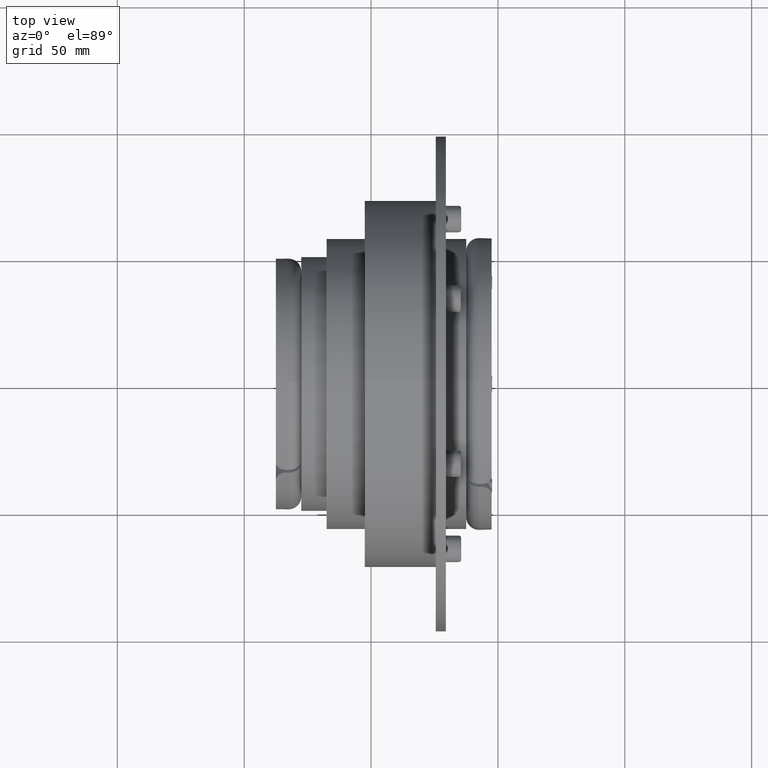
[diagram: clean part render]
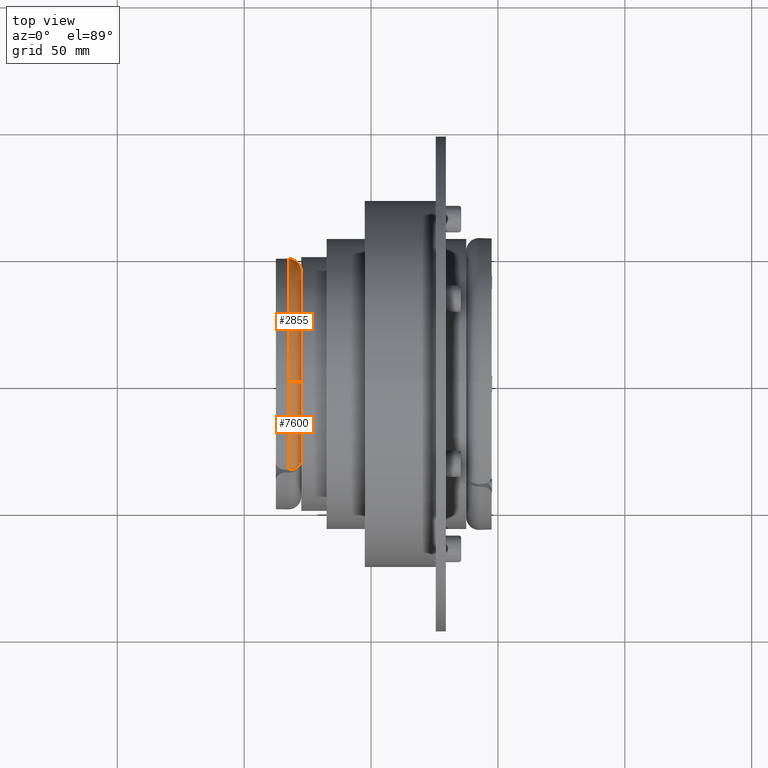
[diagram: same view with one multi-face feature highlighted, each face labeled with its STEP entity id]
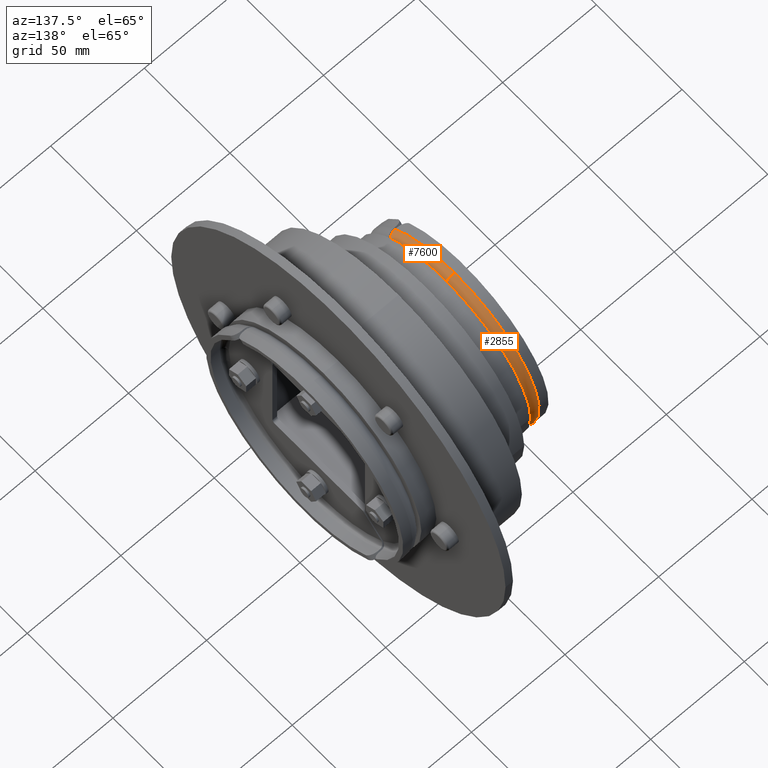
[diagram: same view with one multi-face feature highlighted, each face labeled with its STEP entity id]
A machine part, top view. The highlighted faces form ONE feature: a constant-radius fillet chain: 2 tangent blend faces with common blend radius 5 mm. The faces share edges in the B-rep.
A second angle (auxiliary view) of the same feature is appended — it is thin or edge-on in the first view.
Their STEP definitions:
[1] entity #2855 (Torus):
#2798=CARTESIAN_POINT('',(-70.000000000000014,0.0,0.0));
#2799=DIRECTION('',(-1.0,0.0,0.0));
#2800=DIRECTION('',(0.0,0.0,1.0));
#2801=AXIS2_PLACEMENT_3D('',#2798,#2799,#2800);
#2802=TOROIDAL_SURFACE('',#2801,44.500000000000014,4.999999999999998);
#2803=CARTESIAN_POINT('',(-65.0,-5.417310E-015,44.500000000000014));
#2804=VERTEX_POINT('',#2803);
#2805=CARTESIAN_POINT('',(-70.000000000000014,-6.029613E-015,49.500000000000021));
#2806=VERTEX_POINT('',#2805);
#2807=CARTESIAN_POINT('',(-70.000000000000014,-5.449498E-015,44.500000000000014));
#2808=DIRECTION('',(0.0,-1.0,0.0));
#2809=DIRECTION('',(0.0,0.0,1.0));
#2810=AXIS2_PLACEMENT_3D('',#2807,#2808,#2809);
#2811=CIRCLE('',#2810,4.999999999999998);
#2812=EDGE_CURVE('',#2804,#2806,#2811,.T.);
#2813=ORIENTED_EDGE('',*,*,#2812,.F.);
#2814=CARTESIAN_POINT('',(-65.000000000000014,31.992112457522971,-30.931452285743134));
#2815=VERTEX_POINT('',#2814);
#2816=CARTESIAN_POINT('',(-65.0,0.0,0.0));
#2817=DIRECTION('',(-1.0,0.0,0.0));
#2818=DIRECTION('',(0.0,0.0,1.0));
#2819=AXIS2_PLACEMENT_3D('',#2816,#2817,#2818);
#2820=CIRCLE('',#2819,44.500000000000014);
#2821=EDGE_CURVE('',#2804,#2815,#2820,.T.);
#2822=ORIENTED_EDGE('',*,*,#2821,.T.);
#2823=CARTESIAN_POINT('',(-70.000000000000014,35.528097871850221,-34.467437700070384));
#2824=VERTEX_POINT('',#2823);
#2825=CARTESIAN_POINT('',(-65.000000000000014,31.992112457522971,-30.931452285743134));
#2826=CARTESIAN_POINT('',(-65.000000000000014,32.210318132838466,-31.149657961058633));
#2827=CARTESIAN_POINT('',(-65.030442950448958,32.448627373786593,-31.387967202006756));
#2828=CARTESIAN_POINT('',(-65.161720994761950,32.915345749622318,-31.854685577842481));
#2829=CARTESIAN_POINT('',(-65.262556240810866,33.143754863106736,-32.083094691326899));
#2830=CARTESIAN_POINT('',(-65.498715956671049,33.546934388270415,-32.486274216490578));
#2831=CARTESIAN_POINT('',(-65.655793338122550,33.758851238666836,-32.698191066887006));
#2832=CARTESIAN_POINT('',(-66.029622550108883,34.154492291761116,-33.093832119981286));
#2833=CARTESIAN_POINT('',(-66.246374576751791,34.338216401810662,-33.277556230030825));
#2834=CARTESIAN_POINT('',(-66.682717581167097,34.646779640062348,-33.586119468282519));
#2835=CARTESIAN_POINT('',(-66.942505126156462,34.800048942361826,-33.739388770581996));
#2836=CARTESIAN_POINT('',(-67.501953600874302,35.064393923870838,-34.003733752091009));
#2837=CARTESIAN_POINT('',(-67.801614639168704,35.175469488198210,-34.114809316418373));
#2838=CARTESIAN_POINT('',(-68.371699806749845,35.342454573244169,-34.281794401464332));
#2839=CARTESIAN_POINT('',(-68.694643667383701,35.413750536729239,-34.353090364949402));
#2840=CARTESIAN_POINT('',(-69.354532866605965,35.506572211782583,-34.445912040002746));
#2841=CARTESIAN_POINT('',(-69.691478219682793,35.528097871850221,-34.467437700070384));
#2842=CARTESIAN_POINT('',(-70.000000000000014,35.528097871850221,-34.467437700070384));
#2843=B_SPLINE_CURVE_WITH_KNOTS('',3,(#2825,#2826,#2827,#2828,#2829,#2830,#2831,#2832,#2833,#2834,#2835,#2836,#2837,#2838,#2839,#2840,#2841,#2842),.UNSPECIFIED.,.F.,.U.,(4,2,2,2,2,2,2,2,4),(-0.740529325037661,-0.647952497412275,-0.555375669786889,-0.462806343421485,-0.370237017056080,-0.277675042623206,-0.185113068190332,-0.092556534095166,0.0),.UNSPECIFIED.);
#2844=EDGE_CURVE('',#2815,#2824,#2843,.T.);
#2845=ORIENTED_EDGE('',*,*,#2844,.T.);
#2846=CARTESIAN_POINT('',(-70.000000000000014,0.0,0.0));
#2847=DIRECTION('',(-1.000000000000000,0.0,0.0));
#2848=DIRECTION('',(0.0,-0.707106781186547,0.707106781186547));
#2849=AXIS2_PLACEMENT_3D('',#2846,#2847,#2848);
#2850=CIRCLE('',#2849,49.500000000000014);
#2851=EDGE_CURVE('',#2806,#2824,#2850,.T.);
#2852=ORIENTED_EDGE('',*,*,#2851,.F.);
#2853=EDGE_LOOP('',(#2813,#2822,#2845,#2852));
#2854=FACE_OUTER_BOUND('',#2853,.T.);
#2855=ADVANCED_FACE('',(#2854),#2802,.T.);
[2] entity #7600 (Torus):
#2803=CARTESIAN_POINT('',(-65.0,-5.417310E-015,44.500000000000014));
#2804=VERTEX_POINT('',#2803);
#2805=CARTESIAN_POINT('',(-70.000000000000014,-6.029613E-015,49.500000000000021));
#2806=VERTEX_POINT('',#2805);
#2807=CARTESIAN_POINT('',(-70.000000000000014,-5.449498E-015,44.500000000000014));
#2808=DIRECTION('',(0.0,-1.0,0.0));
#2809=DIRECTION('',(0.0,0.0,1.0));
#2810=AXIS2_PLACEMENT_3D('',#2807,#2808,#2809);
#2811=CIRCLE('',#2810,4.999999999999998);
#2812=EDGE_CURVE('',#2804,#2806,#2811,.T.);
#6871=CARTESIAN_POINT('',(-70.000000000000014,-34.467437700070398,35.528097871850221));
#6872=VERTEX_POINT('',#6871);
#6879=CARTESIAN_POINT('',(-70.000000000000014,0.0,0.0));
#6880=DIRECTION('',(-1.000000000000000,0.0,0.0));
#6881=DIRECTION('',(0.0,-0.707106781186547,0.707106781186547));
#6882=AXIS2_PLACEMENT_3D('',#6879,#6880,#6881);
#6883=CIRCLE('',#6882,49.500000000000014);
#6884=EDGE_CURVE('',#6872,#2806,#6883,.T.);
#6942=CARTESIAN_POINT('',(-65.000000000000014,-30.931452285743152,31.992112457522971));
#6943=VERTEX_POINT('',#6942);
#6950=CARTESIAN_POINT('',(-70.000000000000014,-34.467437700070398,35.528097871850221));
#6951=CARTESIAN_POINT('',(-69.691478219682793,-34.467437700070398,35.528097871850221));
#6952=CARTESIAN_POINT('',(-69.354532866605965,-34.445912040002753,35.506572211782576));
#6953=CARTESIAN_POINT('',(-68.694643667383701,-34.353090364949409,35.413750536729232));
#6954=CARTESIAN_POINT('',(-68.371699806749845,-34.281794401464339,35.342454573244162));
#6955=CARTESIAN_POINT('',(-67.801614639168704,-34.114809316418388,35.175469488198203));
#6956=CARTESIAN_POINT('',(-67.501953600874288,-34.003733752091009,35.064393923870831));
#6957=CARTESIAN_POINT('',(-66.942505126156448,-33.739388770581996,34.800048942361812));
#6958=CARTESIAN_POINT('',(-66.682717581167097,-33.586119468282533,34.646779640062348));
#6959=CARTESIAN_POINT('',(-66.246374576751791,-33.277556230030847,34.338216401810662));
#6960=CARTESIAN_POINT('',(-66.029622550108883,-33.093832119981300,34.154492291761109));
#6961=CARTESIAN_POINT('',(-65.655793338122550,-32.698191066887020,33.758851238666836));
#6962=CARTESIAN_POINT('',(-65.498715956671049,-32.486274216490600,33.546934388270415));
#6963=CARTESIAN_POINT('',(-65.262556240810866,-32.083094691326920,33.143754863106736));
#6964=CARTESIAN_POINT('',(-65.161720994761950,-31.854685577842478,32.915345749622297));
#6965=CARTESIAN_POINT('',(-65.030442950448972,-31.387967202006749,32.448627373786564));
#6966=CARTESIAN_POINT('',(-65.000000000000014,-31.149657961058644,32.210318132838466));
#6967=CARTESIAN_POINT('',(-65.000000000000014,-30.931452285743152,31.992112457522971));
#6968=B_SPLINE_CURVE_WITH_KNOTS('',3,(#6950,#6951,#6952,#6953,#6954,#6955,#6956,#6957,#6958,#6959,#6960,#6961,#6962,#6963,#6964,#6965,#6966,#6967),.UNSPECIFIED.,.F.,.U.,(4,2,2,2,2,2,2,2,4),(0.0,0.092556534095166,0.185113068190332,0.277675042623205,0.370237017056079,0.462806343421484,0.555375669786889,0.647952497412275,0.740529325037662),.UNSPECIFIED.);
#6969=EDGE_CURVE('',#6872,#6943,#6968,.T.);
#7583=CARTESIAN_POINT('',(-70.000000000000014,0.0,0.0));
#7584=DIRECTION('',(-1.0,0.0,0.0));
#7585=DIRECTION('',(0.0,0.0,1.0));
#7586=AXIS2_PLACEMENT_3D('',#7583,#7584,#7585);
#7587=TOROIDAL_SURFACE('',#7586,44.500000000000014,4.999999999999998);
#7588=ORIENTED_EDGE('',*,*,#2812,.T.);
#7589=ORIENTED_EDGE('',*,*,#6884,.F.);
#7590=ORIENTED_EDGE('',*,*,#6969,.T.);
#7591=CARTESIAN_POINT('',(-65.0,0.0,0.0));
#7592=DIRECTION('',(-1.0,0.0,0.0));
#7593=DIRECTION('',(0.0,0.0,1.0));
#7594=AXIS2_PLACEMENT_3D('',#7591,#7592,#7593);
#7595=CIRCLE('',#7594,44.500000000000014);
#7596=EDGE_CURVE('',#6943,#2804,#7595,.T.);
#7597=ORIENTED_EDGE('',*,*,#7596,.T.);
#7598=EDGE_LOOP('',(#7588,#7589,#7590,#7597));
#7599=FACE_OUTER_BOUND('',#7598,.T.);
#7600=ADVANCED_FACE('',(#7599),#7587,.T.);